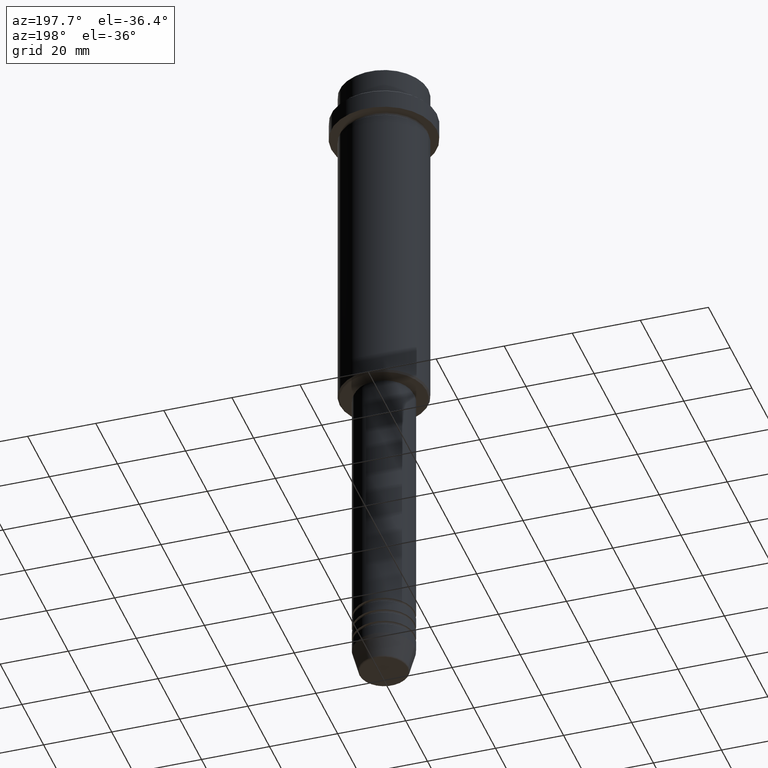
[diagram: clean part render]
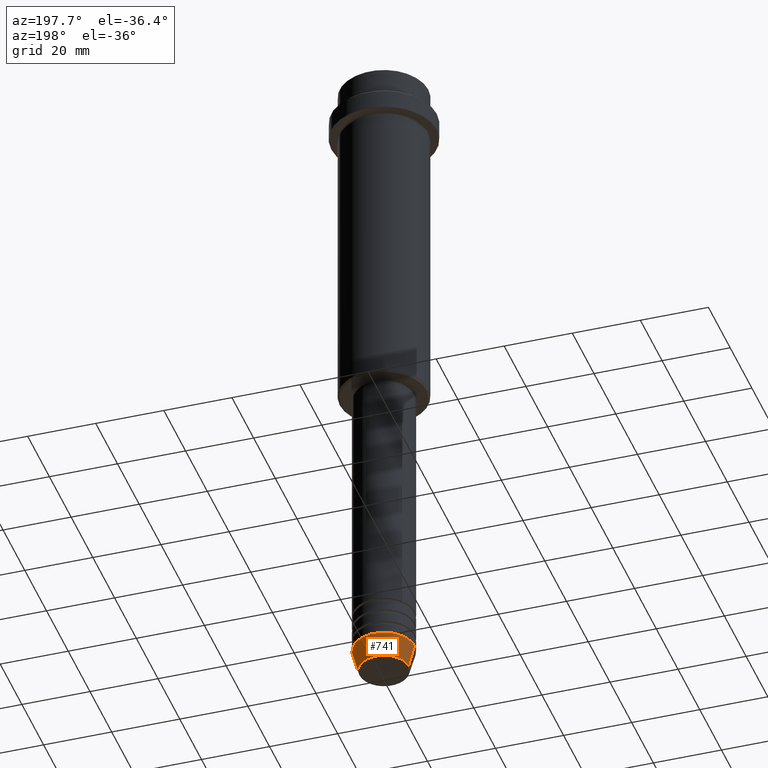
[diagram: same view with one face highlighted and labeled with its STEP entity id]
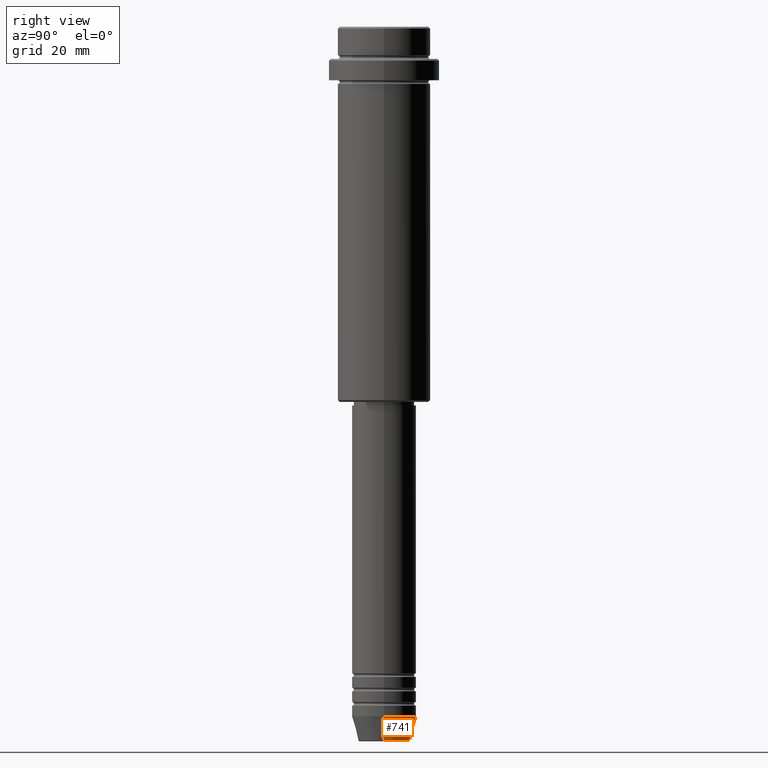
[diagram: same view with one face highlighted and labeled with its STEP entity id]
A machine part, auxiliary view. The second image highlights one B-rep face of the part: STEP entity #741.
A second angle (right view) of the same face is appended — the face is thin or edge-on in the first view.
In plain terms, the highlighted conical surface has half-angle 15 deg.
Its self-contained STEP definition (entity closure, byte-faithful):
#59 = AXIS2_PLACEMENT_3D ( 'NONE', #709, #1030, #1242 ) ;
#83 = VECTOR ( 'NONE', #1000, 1000.000000000000000 ) ;
#85 = CIRCLE ( 'NONE', #1112, 7.223655072137188604 ) ;
#86 = CARTESIAN_POINT ( 'NONE',  ( -7.223655072137189492, 9.934123627281765110E-16, -199.6294095225512990 ) ) ;
#124 = CARTESIAN_POINT ( 'NONE',  ( 7.223655072137188604, 0.000000000000000000, -199.6294095225512990 ) ) ;
#242 = CARTESIAN_POINT ( 'NONE',  ( -9.000000000000000000, 1.102182119232617714E-15, -193.0000000000000000 ) ) ;
#331 = DIRECTION ( 'NONE',  ( -0.000000000000000000, -0.000000000000000000, 1.000000000000000000 ) ) ;
#341 = CARTESIAN_POINT ( 'NONE',  ( 9.000000000000000000, 0.000000000000000000, -193.0000000000000000 ) ) ;
#411 = FACE_OUTER_BOUND ( 'NONE', #472, .T. ) ;
#420 = ORIENTED_EDGE ( 'NONE', *, *, #484, .T. ) ;
#429 = DIRECTION ( 'NONE',  ( 1.000000000000000000, 0.000000000000000000, 0.000000000000000000 ) ) ;
#471 = CONICAL_SURFACE ( 'NONE', #562, 9.000000000000000000, 0.2617993877991500740 ) ;
#472 = EDGE_LOOP ( 'NONE', ( #515, #420, #1191, #997 ) ) ;
#484 = EDGE_CURVE ( 'NONE', #1202, #496, #1123, .T. ) ;
#496 = VERTEX_POINT ( 'NONE', #242 ) ;
#515 = ORIENTED_EDGE ( 'NONE', *, *, #893, .T. ) ;
#562 = AXIS2_PLACEMENT_3D ( 'NONE', #1404, #967, #429 ) ;
#618 = EDGE_CURVE ( 'NONE', #1349, #496, #1133, .T. ) ;
#659 = CARTESIAN_POINT ( 'NONE',  ( 0.000000000000000000, 0.000000000000000000, -199.6294095225512990 ) ) ;
#679 = DIRECTION ( 'NONE',  ( 0.2588190451025213501, 0.000000000000000000, 0.9659258262890680902 ) ) ;
#709 = CARTESIAN_POINT ( 'NONE',  ( 0.000000000000000000, 0.000000000000000000, -193.0000000000000000 ) ) ;
#741 = ADVANCED_FACE ( 'NONE', ( #411 ), #471, .T. ) ;
#790 = DIRECTION ( 'NONE',  ( 1.000000000000000000, 0.000000000000000000, 0.000000000000000000 ) ) ;
#893 = EDGE_CURVE ( 'NONE', #1283, #1202, #85, .T. ) ;
#900 = CARTESIAN_POINT ( 'NONE',  ( -9.000000000000000000, 1.102182119232617714E-15, -193.0000000000000000 ) ) ;
#967 = DIRECTION ( 'NONE',  ( -0.000000000000000000, -0.000000000000000000, 1.000000000000000000 ) ) ;
#989 = LINE ( 'NONE', #995, #1292 ) ;
#995 = CARTESIAN_POINT ( 'NONE',  ( 9.000000000000000000, 0.000000000000000000, -193.0000000000000000 ) ) ;
#997 = ORIENTED_EDGE ( 'NONE', *, *, #1319, .F. ) ;
#1000 = DIRECTION ( 'NONE',  ( -0.2588190451025213501, 3.169619151431772337E-17, 0.9659258262890680902 ) ) ;
#1030 = DIRECTION ( 'NONE',  ( -0.000000000000000000, -0.000000000000000000, 1.000000000000000000 ) ) ;
#1112 = AXIS2_PLACEMENT_3D ( 'NONE', #659, #331, #790 ) ;
#1123 = LINE ( 'NONE', #900, #83 ) ;
#1133 = CIRCLE ( 'NONE', #59, 9.000000000000000000 ) ;
#1191 = ORIENTED_EDGE ( 'NONE', *, *, #618, .F. ) ;
#1202 = VERTEX_POINT ( 'NONE', #86 ) ;
#1242 = DIRECTION ( 'NONE',  ( 1.000000000000000000, 0.000000000000000000, 0.000000000000000000 ) ) ;
#1283 = VERTEX_POINT ( 'NONE', #124 ) ;
#1292 = VECTOR ( 'NONE', #679, 1000.000000000000000 ) ;
#1319 = EDGE_CURVE ( 'NONE', #1283, #1349, #989, .T. ) ;
#1349 = VERTEX_POINT ( 'NONE', #341 ) ;
#1404 = CARTESIAN_POINT ( 'NONE',  ( 0.000000000000000000, 0.000000000000000000, -193.0000000000000000 ) ) ;